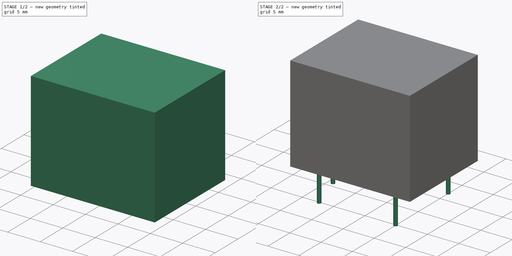
[diagram: build sequence overview — one tinted view per stage of 2, left to right]
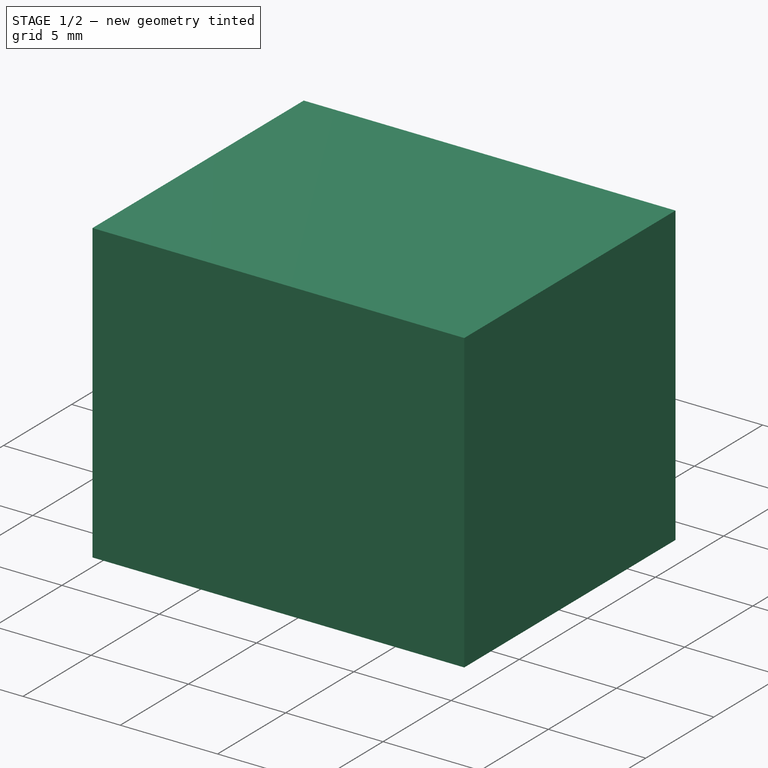
[diagram: stage 1 of 2 — iso view after this stage's code; geometry added in this stage tinted green]
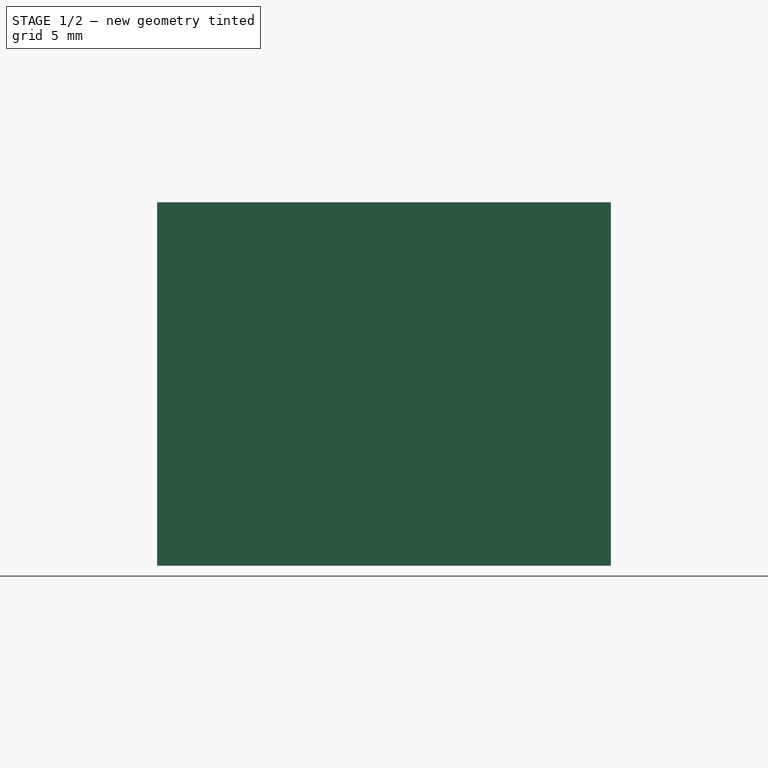
[diagram: stage 1 of 2 — front view after this stage's code; geometry added in this stage tinted green]
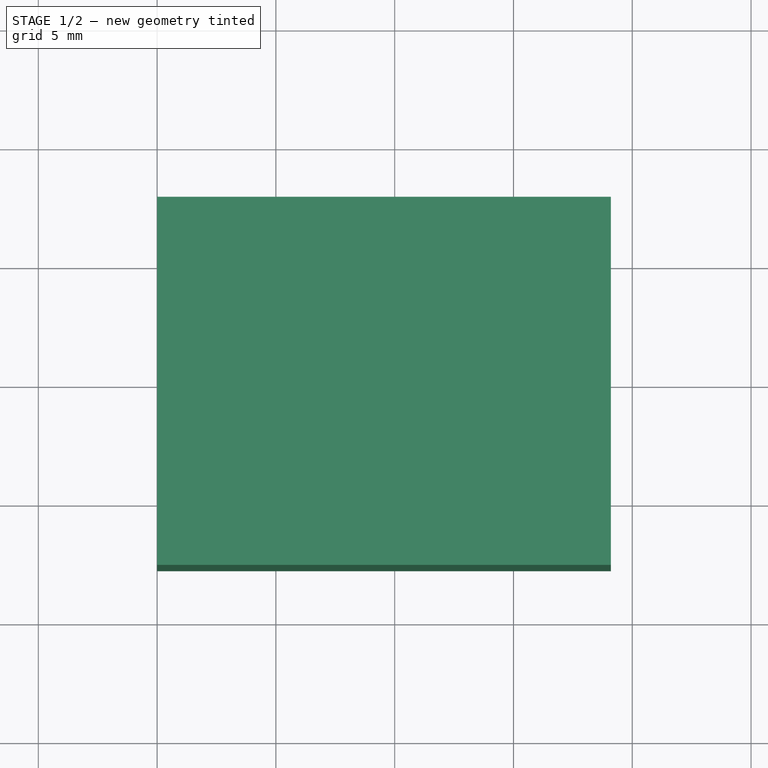
[diagram: stage 1 of 2 — top view after this stage's code; geometry added in this stage tinted green]
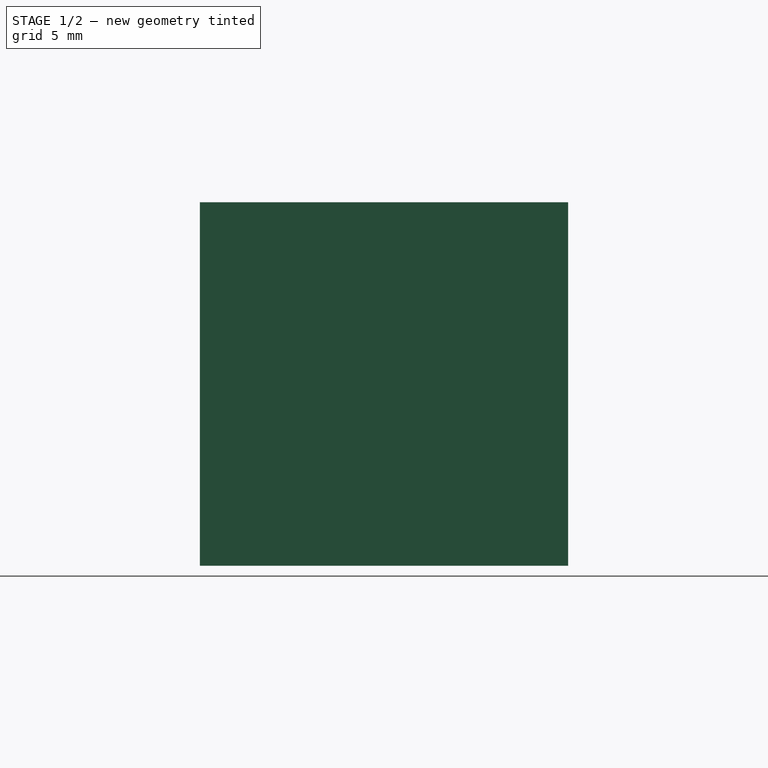
[diagram: stage 1 of 2 — right view after this stage's code; geometry added in this stage tinted green]
FCSTD DOCUMENT  (FreeCAD 0.22R34729 (Git))
Label: Relay-SRD-5VDC-SL-C
License: All rights reserved
LicenseURL: http://en.wikipedia.org/wiki/All_rights_reserved
objects: Sketcher::SketchObject×2, PartDesign::SubShapeBinder×2, PartDesign::Pad×2, PartDesign::Body×1
note: 9 computed .brp shape members not serialized (recipe doc carries the construction recipe); baked Part::Feature solids carry a one-line shape summary decoded from their .brp

FEATURE [Sketcher::SketchObject] Sketch  label="legs_sketch"
  FullyConstrained = true
  sketch-geometry (10):
    g0: Circle CenterX=1.4 CenterY=0 CenterZ=0 NormalX=0 NormalY=0 NormalZ=1 AngleXU=0 Radius=0.3
    g1: Circle CenterX=3.4 CenterY=6 CenterZ=0 NormalX=0 NormalY=0 NormalZ=1 AngleXU=0 Radius=0.3
    g2: Circle CenterX=15.6 CenterY=6 CenterZ=0 NormalX=0 NormalY=0 NormalZ=1 AngleXU=0 Radius=0.3
    g3: Circle CenterX=3.4 CenterY=-6 CenterZ=0 NormalX=0 NormalY=0 NormalZ=1 AngleXU=0 Radius=0.3
    g4: Circle CenterX=15.6 CenterY=-6 CenterZ=0 NormalX=0 NormalY=0 NormalZ=1 AngleXU=0 Radius=0.3
    g5: LineSegment StartX=3.4 StartY=-6 StartZ=0 EndX=3.4 EndY=6 EndZ=0
    g6: LineSegment StartX=3.4 StartY=6 StartZ=0 EndX=15.6 EndY=6 EndZ=0
    g7: LineSegment StartX=15.6 StartY=6 StartZ=0 EndX=15.6 EndY=-6 EndZ=0
    g8: LineSegment StartX=15.6 StartY=-6 StartZ=0 EndX=3.4 EndY=-6 EndZ=0
    g9: GeomPoint X=9.5 Y=-1e-16 Z=0
  constraints (24):
    c: PointOnObject(g0,g-1)
    c: DistanceX(g0) = 1.4
    c: Coincident(g5,g6)
    c: Coincident(g6,g7)
    c: Coincident(g7,g8)
    c: Coincident(g8,g5)
    c: Horizontal(g6)
    c: Horizontal(g8)
    c: Vertical(g5)
    c: Vertical(g7)
    c: Symmetric(g6,g5,g9)
    c: PointOnObject(g9,g-1)
    c: Coincident(g6,g2)
    c: Coincident(g5,g3)
    c: Coincident(g4,g7)
    c: Coincident(g1,g5)
    c: DistanceX(g0,g1) = 2
    c: DistanceX(g1,g2) = 12.2
    c: DistanceY(g3,g1) = 12
    c: Equal(g0,g1)
    c: Equal(g0,g2)
    c: Equal(g0,g4)
    c: Equal(g0,g3)
    c: Diameter(g0) = 0.6
FEATURE [Sketcher::SketchObject] Sketch001  label="base_sketch"
  FullyConstrained = true
  sketch-geometry (5):
    g0: LineSegment StartX=19.1 StartY=-7.75 StartZ=0 EndX=19.1 EndY=7.75 EndZ=0
    g1: LineSegment StartX=19.1 StartY=7.75 StartZ=0 EndX=0 EndY=7.75 EndZ=0
    g2: LineSegment StartX=0 StartY=7.75 StartZ=0 EndX=0 EndY=-7.75 EndZ=0
    g3: LineSegment StartX=0 StartY=-7.75 StartZ=0 EndX=19.1 EndY=-7.75 EndZ=0
    g4: GeomPoint X=9.55 Y=0 Z=0
  constraints (13):
    c: Coincident(g0,g1)
    c: Coincident(g1,g2)
    c: Coincident(g2,g3)
    c: Coincident(g3,g0)
    c: Horizontal(g1)
    c: Horizontal(g3)
    c: Vertical(g0)
    c: Vertical(g2)
    c: Symmetric(g1,g0,g4)
    c: PointOnObject(g4,g-1)
    c: PointOnObject(g1,g-2)
    c: DistanceX(g1,g1) = 19.1  'width'
    c: DistanceY(g2,g2) = 15.5  'length'
FEATURE [PartDesign::SubShapeBinder] Binder
  BindCopyOnChange = 0
  BindMode = 0
  ClaimChildren = false
  Context = -> Body [Binder.]
  Fuse = false
  MakeFace = true
  OffsetFill = false
  OffsetIntersection = false
  OffsetJoinType = 0
  OffsetOpenResult = false
  PartialLoad = false
  Relative = true
  Support = -> [Sketch001]
  _Version = 2
FEATURE [PartDesign::Pad] Pad
  Direction = (0,0,1)
  Length = 15.3
  Length2 = 10
  Profile = -> Binder
  Type = 0
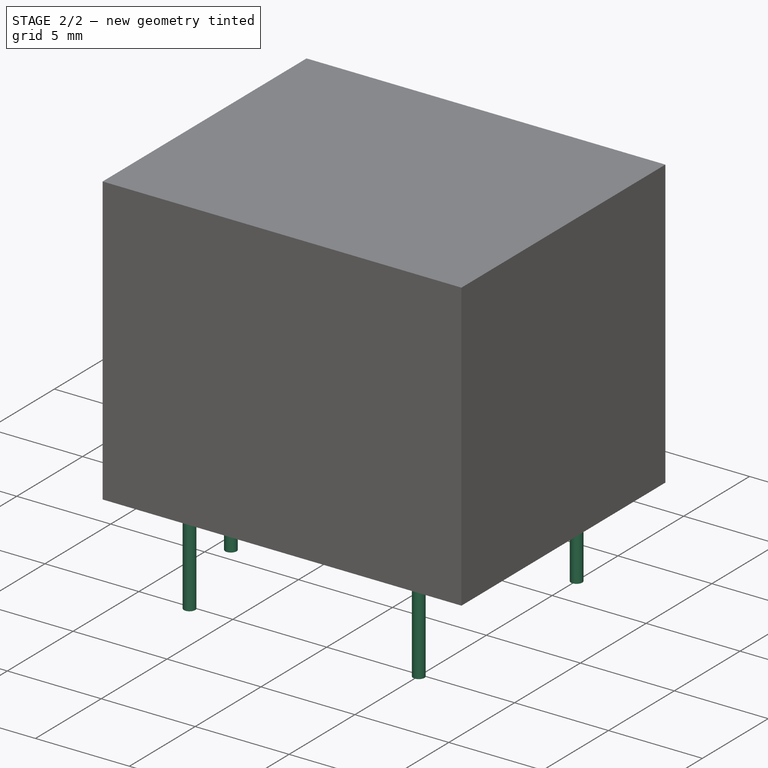
[diagram: stage 2 of 2 — iso view after this stage's code; geometry added in this stage tinted green]
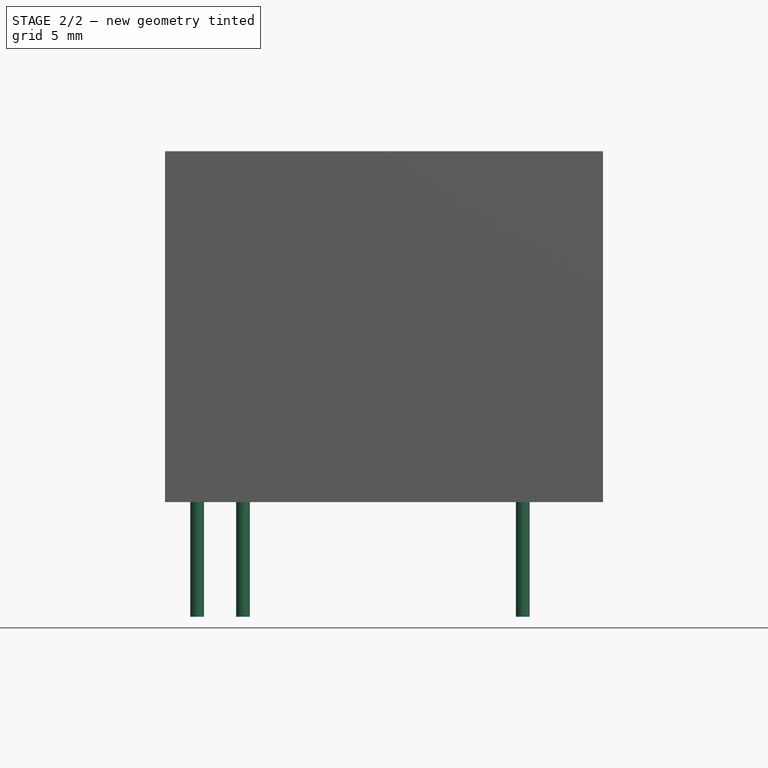
[diagram: stage 2 of 2 — front view after this stage's code; geometry added in this stage tinted green]
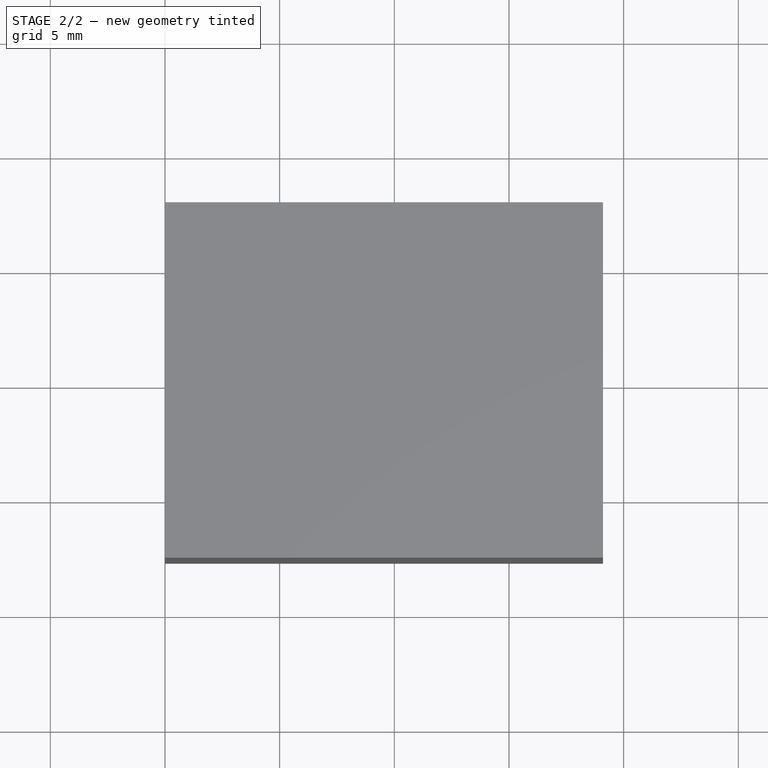
[diagram: stage 2 of 2 — top view after this stage's code; geometry added in this stage tinted green]
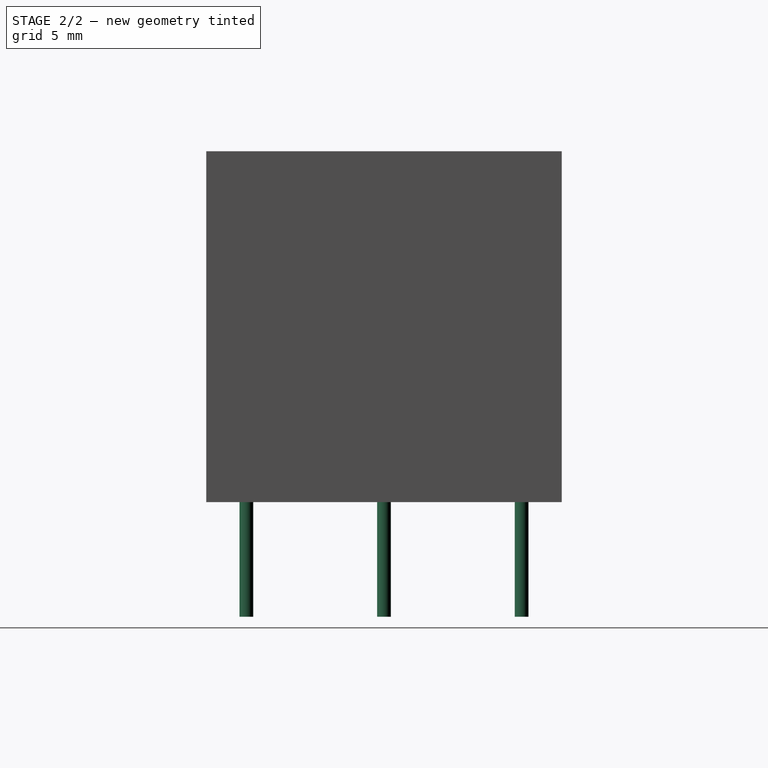
[diagram: stage 2 of 2 — right view after this stage's code; geometry added in this stage tinted green]
FEATURE [PartDesign::SubShapeBinder] Binder001
  BindCopyOnChange = 0
  BindMode = 0
  ClaimChildren = false
  Context = -> Body [Binder001.]
  Fuse = false
  MakeFace = true
  OffsetFill = false
  OffsetIntersection = false
  OffsetJoinType = 0
  OffsetOpenResult = false
  PartialLoad = false
  Relative = true
  Support = -> [Sketch]
  _Version = 2
FEATURE [PartDesign::Pad] Pad001
  BaseFeature = -> Pad
  Direction = (0,0,1)
  Length = 5
  Length2 = 10
  Profile = -> Binder001
  Reversed = true
  Type = 0
FEATURE [PartDesign::Body] Body
  Group = -> [Binder,Pad,Binder001,Pad001]
  Origin = -> Origin
  Tip = -> Pad001
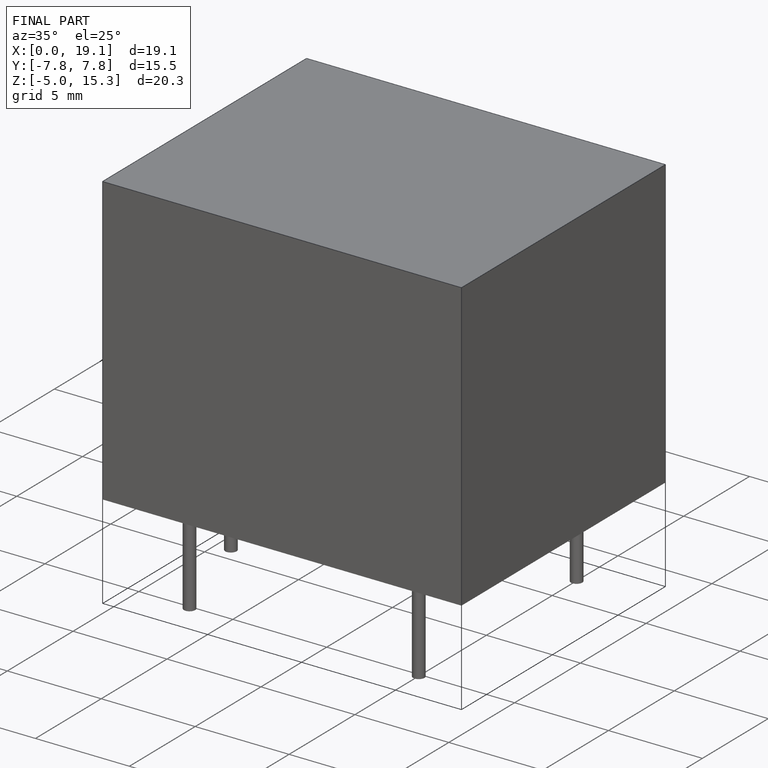
[diagram: finished part — iso view with bounding-box wireframe]
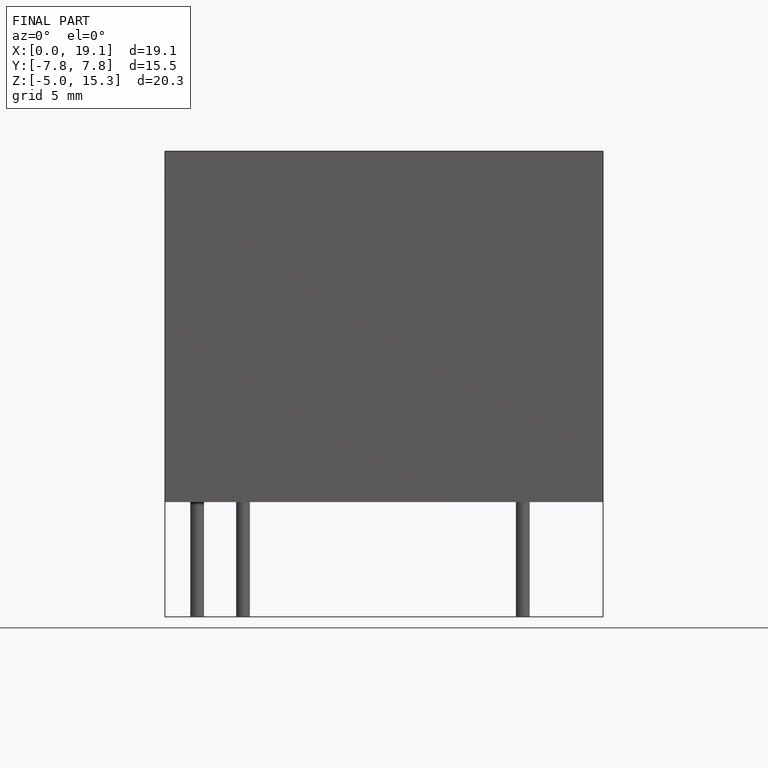
[diagram: finished part — front view with bounding-box wireframe]
